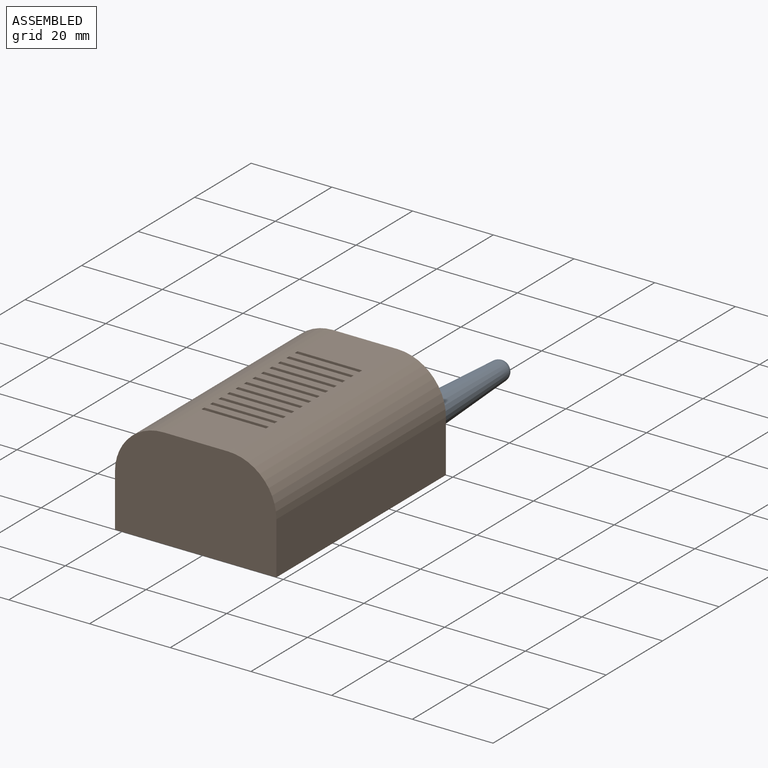
[diagram: assembled view]
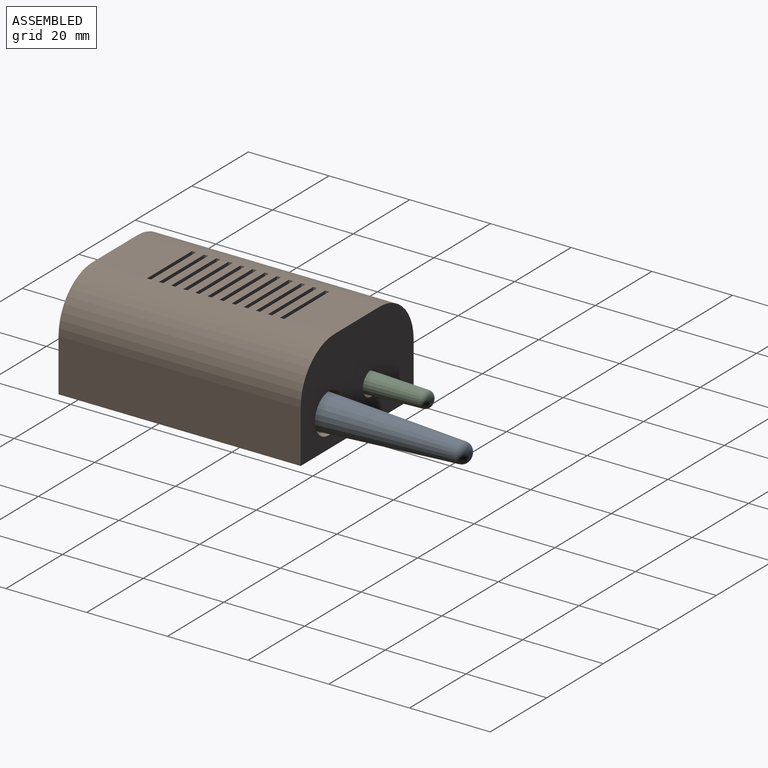
[diagram: assembled view, second angle]
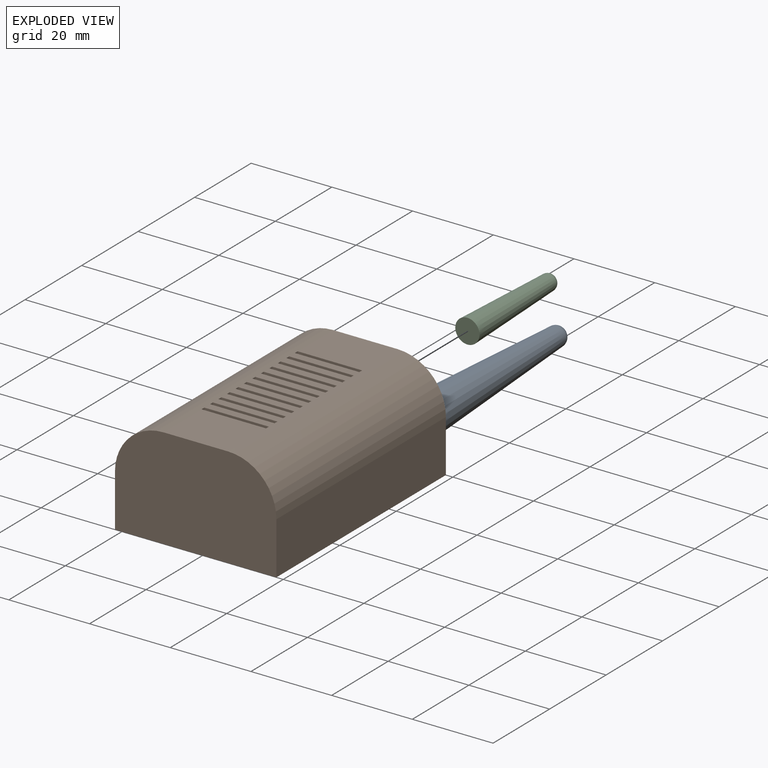
[diagram: exploded view]
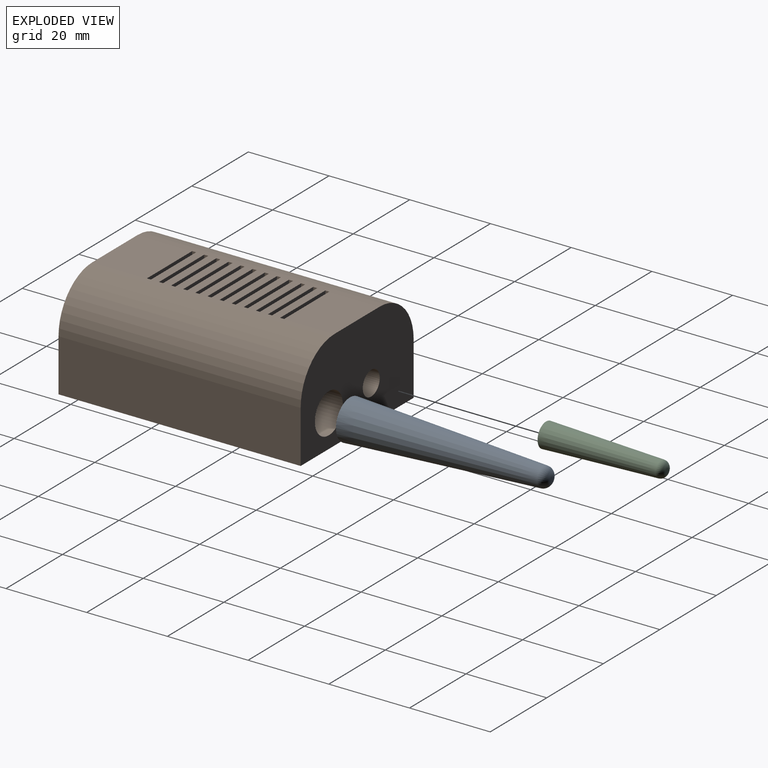
[diagram: exploded view, second angle]
ASSEMBLY  parts=3 mates=2
PART A: 4 faces, bbox 9.9x9.9x50 mm
  f0: cone r=4.94mm half-angle=3deg, axis (0,0,-1), area 1114.5mm2, adj f2,f3
  f1: plane 0.85x0.85mm, normal (0,0,1), area 0.6mm2, adj f3
  f2: plane 9.89x9.89mm, normal (0,0,-1), area 76.8mm2, adj f0
  f3: torus R=0.42mm, axis (0,0,1), area 31.9mm2, adj f0,f1
PART B: 84 faces, bbox 40x60x25 mm
  f0: plane 16x2mm, normal (0,0,1), area 32mm2, adj f18,f19,f76,f79
  f1: plane 16x2mm, normal (0,0,1), area 32mm2, adj f18,f19,f71,f74
  f2: plane 16x2mm, normal (0,0,1), area 32mm2, adj f18,f19,f66,f69
  f3: plane 16x2mm, normal (0,0,1), area 32mm2, adj f18,f19,f61,f64
  f4: plane 16x2mm, normal (0,0,1), area 32mm2, adj f18,f19,f56,f59
  f5: plane 16x2mm, normal (0,0,1), area 32mm2, adj f18,f19,f51,f54
  f6: plane 16x2mm, normal (0,0,1), area 32mm2, adj f18,f19,f46,f49
  f7: plane 16x2mm, normal (0,0,1), area 32mm2, adj f18,f19,f41,f44
  f8: plane 16x2mm, normal (0,0,1), area 32mm2, adj f18,f19,f36,f39
  f9: plane 16x2mm, normal (0,0,1), area 32mm2, adj f18,f19,f31,f34
  f10: plane 16x2mm, normal (0,0,1), area 32mm2, adj f18,f19,f26,f29
  f11: plane 16x12.49mm, normal (0,0,1), area 199.9mm2, adj f15,f18,f19,f24
  f12: plane 60x13mm, normal (-1,0,0), area 780mm2, adj f13,f15,f17,f19
  f13: plane 40x25mm, normal (0,-1,0), area 938.2mm2, adj f12,f14,f16,f17,f18,f19
  f14: plane 60x13mm, normal (1,0,0), area 780mm2, adj f13,f15,f17,f18
  f15: plane 40x25mm, normal (0,1,0), area 833.2mm2, adj f11,f12,f14,f17,f18,f19,f20,f22
  f16: plane 16x13.51mm, normal (0,0,1), area 216.1mm2, adj f13,f18,f19,f81
  f17: plane 60x40mm, normal (0,0,-1), area 2400mm2, adj f12,f13,f14,f15
  f18: cylinder r=12mm len=60mm, axis (0,-1,0), area 1131mm2, adj f0,f1,f2,f3,f4,f5,f6,f7
  f19: cylinder r=12mm len=60mm, axis (0,1,0), area 1131mm2, adj f0,f1,f2,f3,f4,f5,f6,f7
  f20: cylinder r=3mm len=15mm, axis (0,1,0), area 282.7mm2, adj f15,f21
  f21: plane 6x6mm, normal (0,1,0), area 28.3mm2, adj f20
  f22: cylinder r=4.94mm len=15mm, axis (0,1,0), area 465.9mm2, adj f15,f23
  f23: plane 9.89x9.89mm, normal (0,1,0), area 76.8mm2, adj f22
  f24: plane 16x5mm, normal (0,-1,0), area 80mm2, adj f11,f25,f27,f28
  f25: plane 5x1mm, normal (1,0,0), area 5mm2, adj f19,f24,f26,f28
  f26: plane 16x5mm, normal (0,1,0), area 80mm2, adj f10,f25,f27,f28
  f27: plane 5x1mm, normal (-1,0,0), area 5mm2, adj f18,f24,f26,f28
  f28: plane 16x1mm, normal (0,0,1), area 16mm2, adj f24,f25,f26,f27
  f29: plane 16x5mm, normal (0,-1,0), area 80mm2, adj f10,f30,f32,f33
  f30: plane 5x1mm, normal (1,0,0), area 5mm2, adj f19,f29,f31,f33
  f31: plane 16x5mm, normal (0,1,0), area 80mm2, adj f9,f30,f32,f33
  f32: plane 5x1mm, normal (-1,0,0), area 5mm2, adj f18,f29,f31,f33
  f33: plane 16x1mm, normal (0,0,1), area 16mm2, adj f29,f30,f31,f32
  f34: plane 16x5mm, normal (0,-1,0), area 80mm2, adj f9,f35,f37,f38
  f35: plane 5x1mm, normal (1,0,0), area 5mm2, adj f19,f34,f36,f38
  f36: plane 16x5mm, normal (0,1,0), area 80mm2, adj f8,f35,f37,f38
  f37: plane 5x1mm, normal (-1,0,0), area 5mm2, adj f18,f34,f36,f38
  f38: plane 16x1mm, normal (0,0,1), area 16mm2, adj f34,f35,f36,f37
  f39: plane 16x5mm, normal (0,-1,0), area 80mm2, adj f8,f40,f42,f43
  f40: plane 5x1mm, normal (1,0,0), area 5mm2, adj f19,f39,f41,f43
  f41: plane 16x5mm, normal (0,1,0), area 80mm2, adj f7,f40,f42,f43
  f42: plane 5x1mm, normal (-1,0,0), area 5mm2, adj f18,f39,f41,f43
  f43: plane 16x1mm, normal (0,0,1), area 16mm2, adj f39,f40,f41,f42
  f44: plane 16x5mm, normal (0,-1,0), area 80mm2, adj f7,f45,f47,f48
  f45: plane 5x1mm, normal (1,0,0), area 5mm2, adj f19,f44,f46,f48
  f46: plane 16x5mm, normal (0,1,0), area 80mm2, adj f6,f45,f47,f48
  f47: plane 5x1mm, normal (-1,0,0), area 5mm2, adj f18,f44,f46,f48
  f48: plane 16x1mm, normal (0,0,1), area 16mm2, adj f44,f45,f46,f47
  f49: plane 16x5mm, normal (0,-1,0), area 80mm2, adj f6,f50,f52,f53
  f50: plane 5x1mm, normal (1,0,0), area 5mm2, adj f19,f49,f51,f53
  f51: plane 16x5mm, normal (0,1,0), area 80mm2, adj f5,f50,f52,f53
  f52: plane 5x1mm, normal (-1,0,0), area 5mm2, adj f18,f49,f51,f53
  f53: plane 16x1mm, normal (0,0,1), area 16mm2, adj f49,f50,f51,f52
  f54: plane 16x5mm, normal (0,-1,0), area 80mm2, adj f5,f55,f57,f58
  f55: plane 5x1mm, normal (1,0,0), area 5mm2, adj f19,f54,f56,f58
  f56: plane 16x5mm, normal (0,1,0), area 80mm2, adj f4,f55,f57,f58
  f57: plane 5x1mm, normal (-1,0,0), area 5mm2, adj f18,f54,f56,f58
  f58: plane 16x1mm, normal (0,0,1), area 16mm2, adj f54,f55,f56,f57
  f59: plane 16x5mm, normal (0,-1,0), area 80mm2, adj f4,f60,f62,f63
  f60: plane 5x1mm, normal (1,0,0), area 5mm2, adj f19,f59,f61,f63
  f61: plane 16x5mm, normal (0,1,0), area 80mm2, adj f3,f60,f62,f63
  f62: plane 5x1mm, normal (-1,0,0), area 5mm2, adj f18,f59,f61,f63
  f63: plane 16x1mm, normal (0,0,1), area 16mm2, adj f59,f60,f61,f62
  f64: plane 16x5mm, normal (0,-1,0), area 80mm2, adj f3,f65,f67,f68
  f65: plane 5x1mm, normal (1,0,0), area 5mm2, adj f19,f64,f66,f68
  f66: plane 16x5mm, normal (0,1,0), area 80mm2, adj f2,f65,f67,f68
  f67: plane 5x1mm, normal (-1,0,0), area 5mm2, adj f18,f64,f66,f68
  f68: plane 16x1mm, normal (0,0,1), area 16mm2, adj f64,f65,f66,f67
  f69: plane 16x5mm, normal (0,-1,0), area 80mm2, adj f2,f70,f72,f73
  f70: plane 5x1mm, normal (1,0,0), area 5mm2, adj f19,f69,f71,f73
  f71: plane 16x5mm, normal (0,1,0), area 80mm2, adj f1,f70,f72,f73
  f72: plane 5x1mm, normal (-1,0,0), area 5mm2, adj f18,f69,f71,f73
  f73: plane 16x1mm, normal (0,0,1), area 16mm2, adj f69,f70,f71,f72
  f74: plane 16x5mm, normal (0,-1,0), area 80mm2, adj f1,f75,f77,f78
  f75: plane 5x1mm, normal (1,0,0), area 5mm2, adj f19,f74,f76,f78
  f76: plane 16x5mm, normal (0,1,0), area 80mm2, adj f0,f75,f77,f78
  f77: plane 5x1mm, normal (-1,0,0), area 5mm2, adj f18,f74,f76,f78
  f78: plane 16x1mm, normal (0,0,1), area 16mm2, adj f74,f75,f76,f77
  f79: plane 16x5mm, normal (0,-1,0), area 80mm2, adj f0,f80,f82,f83
  f80: plane 5x1mm, normal (1,0,0), area 5mm2, adj f19,f79,f81,f83
  f81: plane 16x5mm, normal (0,1,0), area 80mm2, adj f16,f80,f82,f83
  f82: plane 5x1mm, normal (-1,0,0), area 5mm2, adj f18,f79,f81,f83
  f83: plane 16x1mm, normal (0,0,1), area 16mm2, adj f79,f80,f81,f82
PART C: 4 faces, bbox 6x6x30 mm
  f0: cone r=3mm half-angle=2deg, axis (0,0,-1), area 449mm2, adj f2,f3
  f1: plane 1.01x1.01mm, normal (0,0,1), area 0.8mm2, adj f3
  f2: plane 6x6mm, normal (0,0,-1), area 28.3mm2, adj f0
  f3: torus R=0.5mm, axis (0,0,1), area 20.9mm2, adj f0,f1
PLACE A rot(axis=(-1,0,0),90deg) t=(37.76,42.2,18.25)mm
PLACE B t=(0.26,-2.8,10.75)mm
PLACE C rot(axis=(-1,0,0),90deg) t=(7.76,42.2,20.25)mm
MATE fastened C.f0 <-> B.f20  axis (0,-1,0) through (15.26,42.2,19.75)mm
MATE fastened A.f0 <-> B.f22  axis (0,-1,0) through (30.26,42.2,18.75)mm
